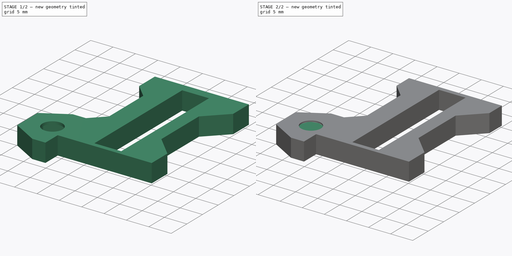
[diagram: build sequence overview — one tinted view per stage of 2, left to right]
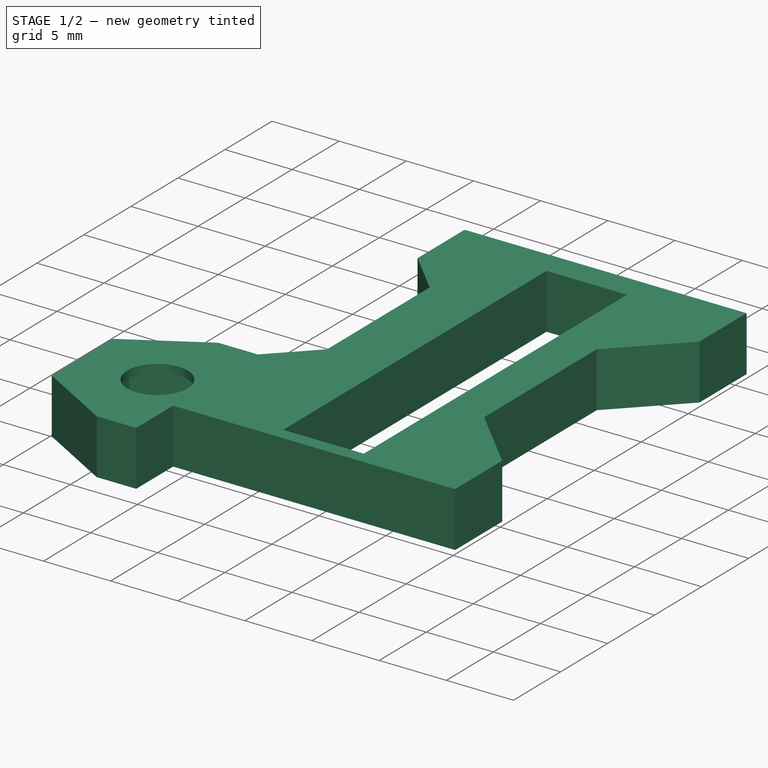
[diagram: stage 1 of 2 — iso view after this stage's code; geometry added in this stage tinted green]
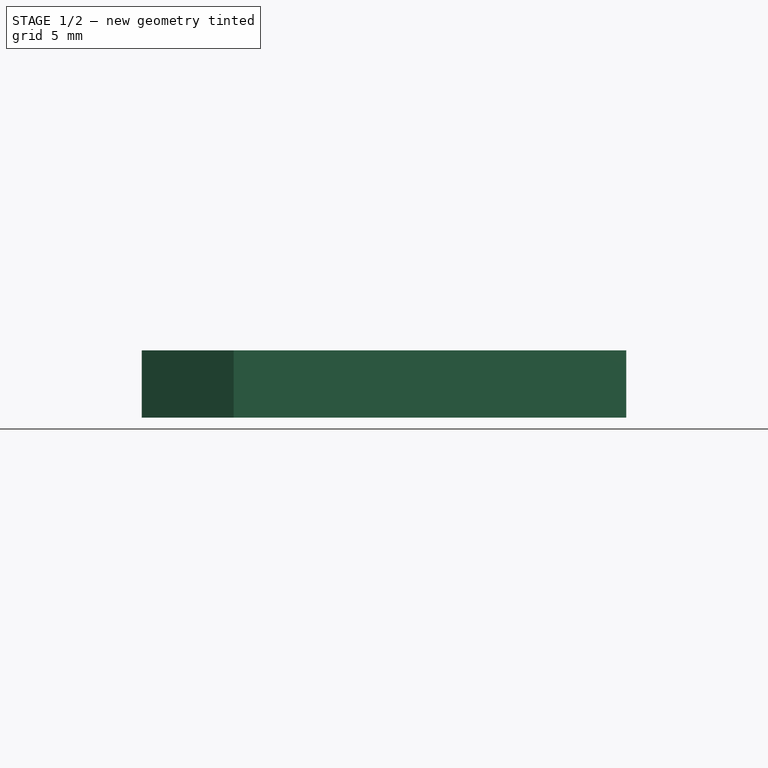
[diagram: stage 1 of 2 — front view after this stage's code; geometry added in this stage tinted green]
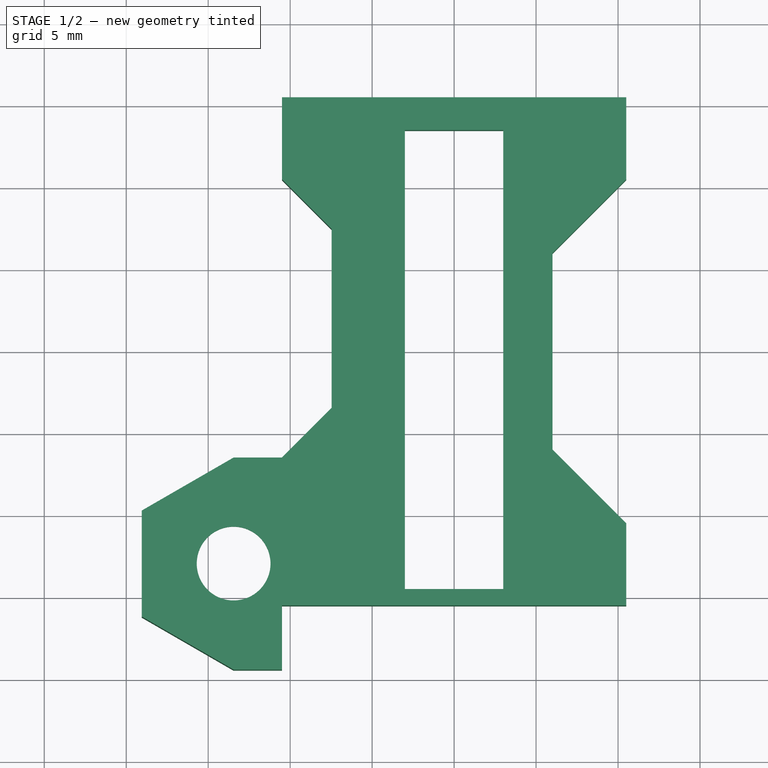
[diagram: stage 1 of 2 — top view after this stage's code; geometry added in this stage tinted green]
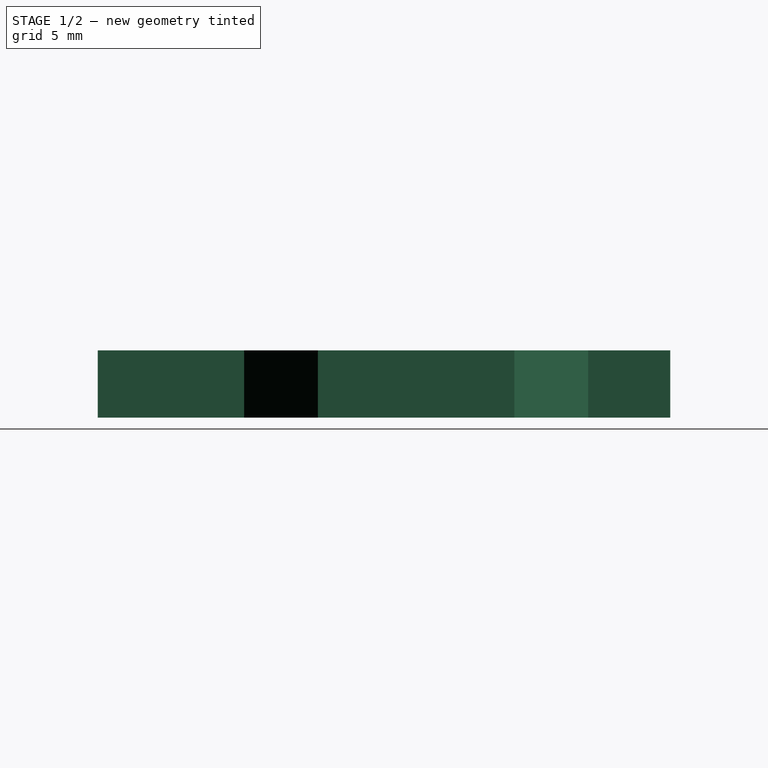
[diagram: stage 1 of 2 — right view after this stage's code; geometry added in this stage tinted green]
FCSTD DOCUMENT  (FreeCAD 0.15R4671 (Git))
Label: Halter Gleitlager Z - Zwischenstueck links
License: All rights reserved
LicenseURL: http://de.wikipedia.org/wiki/Alle_Rechte_vorbehalten
objects: Sketcher::SketchObject×4, PartDesign::Pad×2, PartDesign::Pocket×2
note: 12 computed .brp shape members not serialized (recipe doc carries the construction recipe); baked Part::Feature solids carry a one-line shape summary decoded from their .brp

FEATURE [Sketcher::SketchObject] Sketch
  sketch-geometry (39):
    g0: LineSegment StartX=-10.5 StartY=15.5 StartZ=0 EndX=10.5 EndY=15.5 EndZ=0
    g1: LineSegment [constr] StartX=10.5 StartY=15.5 StartZ=0 EndX=10.5 EndY=-15.5 EndZ=0
    g2: LineSegment [constr] StartX=10.5 StartY=-15.5 StartZ=0 EndX=-10.5 EndY=-15.5 EndZ=0
    g3: LineSegment StartX=10.5 StartY=15.5 StartZ=0 EndX=10.5 EndY=10.491 EndZ=0
    g4: LineSegment StartX=10.5 StartY=10.491 StartZ=0 EndX=6 EndY=5.991 EndZ=0
    g5: LineSegment StartX=6 StartY=5.991 StartZ=0 EndX=6 EndY=-5.991 EndZ=0
    g6: LineSegment StartX=6 StartY=-5.991 StartZ=0 EndX=10.5 EndY=-10.491 EndZ=0
    g7: LineSegment StartX=10.5 StartY=-10.491 StartZ=0 EndX=10.5 EndY=-15.5 EndZ=0
    g8: LineSegment StartX=-10.5 StartY=15.5 StartZ=0 EndX=-10.5 EndY=10.491 EndZ=0
    g9: LineSegment [constr] StartX=-10.5 StartY=10.491 StartZ=0 EndX=-6 EndY=5.991 EndZ=0
    g10: LineSegment [constr] StartX=-6 StartY=-5.991 StartZ=0 EndX=-10.509 EndY=-10.5 EndZ=0
    g11: LineSegment [constr] StartX=-13.45 StartY=-17.0203 StartZ=0 EndX=-9.925 EndY=-14.9852 EndZ=0
    g12: LineSegment [constr] StartX=-9.925 StartY=-14.9852 StartZ=0 EndX=-9.925 EndY=-10.9148 EndZ=0
    g13: LineSegment [constr] StartX=-9.925 StartY=-10.9148 StartZ=0 EndX=-13.45 EndY=-8.87968 EndZ=0
    g14: LineSegment [constr] StartX=-13.45 StartY=-8.87968 StartZ=0 EndX=-16.975 EndY=-10.9148 EndZ=0
    g15: LineSegment [constr] StartX=-16.975 StartY=-10.9148 StartZ=0 EndX=-16.975 EndY=-14.9852 EndZ=0
    g16: LineSegment [constr] StartX=-16.975 StartY=-14.9852 StartZ=0 EndX=-13.45 EndY=-17.0203 EndZ=0
    g17: Circle [constr] CenterX=-13.45 CenterY=-12.95 CenterZ=0 NormalX=0 NormalY=0 NormalZ=1 Radius=4.07032
    g18: LineSegment StartX=-7.47211 StartY=-3.44358 StartZ=0 EndX=-10.5082 EndY=-6.47968 EndZ=0
    g19: LineSegment StartX=-10.5082 StartY=-6.47968 StartZ=0 EndX=-13.45 EndY=-6.47968 EndZ=0
    g20: LineSegment StartX=-13.45 StartY=-6.47968 StartZ=0 EndX=-19.0535 EndY=-9.71484 EndZ=0
    g21: LineSegment StartX=-19.0535 StartY=-9.71484 StartZ=0 EndX=-19.0535 EndY=-16.1852 EndZ=0
    g22: LineSegment StartX=-19.0535 StartY=-16.1852 StartZ=0 EndX=-13.45 EndY=-19.4203 EndZ=0
    g23: LineSegment [constr] StartX=-13.45 StartY=-19.4203 StartZ=0 EndX=-10.5 EndY=-17.7171 EndZ=0
    g24: LineSegment StartX=-10.5 StartY=-15.5 StartZ=0 EndX=10.5 EndY=-15.5 EndZ=0
    g25: LineSegment [constr] StartX=-19.0535 StartY=-9.71484 StartZ=0 EndX=-16.975 EndY=-10.9148 EndZ=0
    g26: LineSegment [constr] StartX=-19.0535 StartY=-16.1852 StartZ=0 EndX=-16.975 EndY=-14.9852 EndZ=0
    g27: LineSegment [constr] StartX=-13.45 StartY=-17.0203 StartZ=0 EndX=-13.45 EndY=-19.4203 EndZ=0
    g28: LineSegment StartX=-7.47211 StartY=-3.44358 StartZ=0 EndX=-7.47211 EndY=7.46311 EndZ=0
    g29: LineSegment [constr] StartX=-13.45 StartY=-8.87968 StartZ=0 EndX=-13.45 EndY=-6.47968 EndZ=0
    g30: LineSegment StartX=-10.5 StartY=10.491 StartZ=0 EndX=-7.47211 EndY=7.46311 EndZ=0
    g31: LineSegment StartX=-10.5 StartY=-15.5 StartZ=0 EndX=-10.5 EndY=-17.7171 EndZ=0
    g32: Circle CenterX=-13.45 CenterY=-12.95 CenterZ=0 NormalX=0 NormalY=0 NormalZ=1 Radius=2.25
    g33: LineSegment StartX=-13.45 StartY=-19.4203 StartZ=0 EndX=-10.5 EndY=-19.4203 EndZ=0
    g34: LineSegment StartX=-10.5 StartY=-19.4203 StartZ=0 EndX=-10.5 EndY=-17.7171 EndZ=0
    g35: LineSegment StartX=-3 StartY=13.5 StartZ=0 EndX=3 EndY=13.5 EndZ=0
    g36: LineSegment StartX=3 StartY=13.5 StartZ=0 EndX=3 EndY=-14.5 EndZ=0
    g37: LineSegment StartX=3 StartY=-14.5 StartZ=0 EndX=-3 EndY=-14.5 EndZ=0
    g38: LineSegment StartX=-3 StartY=-14.5 StartZ=0 EndX=-3 EndY=13.5 EndZ=0
  constraints (102):
    c: Coincident(g0,g1)
    c: Coincident(g1,g2)
    c: Horizontal(g0)
    c: Horizontal(g2)
    c: Vertical(g1)
    c: DistanceY(g1) = -31
    c: Symmetric(g0,g1,g-1)
    c: Symmetric(g0,g0,g-2)
    c: DistanceX(g0) = 21
    c: Coincident(g0,g3)
    c: Vertical(g3)
    c: Coincident(g3,g4)
    c: Coincident(g4,g5)
    c: Vertical(g5)
    c: Coincident(g5,g6)
    c: Coincident(g6,g7)
    c: Coincident(g7,g1)
    c: Vertical(g7)
    c: Coincident(g0,g8)
    c: Vertical(g8)
    c: Coincident(g8,g9)
    c: Parallel(g6,g9)
    c: Parallel(g10,g4)
    c: Symmetric(g9,g10,g-1)
    c: Symmetric(g4,g5,g-1)
    c: Symmetric(g9,g4,g-2)
    c: DistanceX(g9,g4) = 12
    c: DistanceY(g10,g2) = -5
    c: Coincident(g11,g12)
    c: Coincident(g12,g13)
    c: Coincident(g13,g14)
    c: Coincident(g14,g15)
    c: Coincident(g15,g16)
    c: Coincident(g16,g11)
    c: Equal(g11, g12-g16) x5
    c: PointOnObject(g11,g17)
    c: PointOnObject(g12,g17)
    c: PointOnObject(g13,g17)
    c: PointOnObject(g14,g17)
    c: PointOnObject(g15,g17)
    c: PointOnObject(g16,g17)
    c: Vertical(g15)
    c: Distance(g11,g15) = 7.05
    c: DistanceX(g2,g17) = -2.95
    c: DistanceY(g17,g2) = -2.55
    c: Coincident(g18,g19)
    c: Horizontal(g19)
    c: Coincident(g19,g20)
    c: Coincident(g20,g21)
    c: Vertical(g21)
    c: Coincident(g21,g22)
    c: Coincident(g22,g23)
    c: Horizontal(g24)
    c: Coincident(g24,g1)
    c: Parallel(g23,g11)
    c: Parallel(g16,g22)
    c: Parallel(g14,g20)
    c: Parallel(g18,g10)
    c: Coincident(g25,g20)
    c: Coincident(g25,g14)
    c: Perpendicular(g17,g25)
    c: Distance(g25) = 2.4
    c: Coincident(g26,g21)
    c: Coincident(g26,g15)
    c: Perpendicular(g17,g26)
    c: Equal(g26,g25)
    c: Coincident(g27,g11)
    c: Coincident(g27,g22)
    c: Vertical(g27)
    c: Coincident(g28,g18)
    c: PointOnObject(g28,g9)
    c: Vertical(g28)
    c: Angle(g5,g4) = 2.35619
    c: Angle(g6,g5) = 2.35619
    c: Coincident(g29,g13)
    c: Coincident(g29,g19)
    c: Vertical(g29)
    c: Equal(g29,g27)
    c: Coincident(g30,g8)
    c: Coincident(g28,g30)
    c: Coincident(g31,g2)
    c: Coincident(g31,g23)
    c: Vertical(g31)
    c: Coincident(g32,g17)
    c: Radius(g32) = 2.25
    c: Coincident(g22,g33)
    c: Horizontal(g33)
    c: Coincident(g33,g34)
    c: Coincident(g34,g23)
    c: Vertical(g34)
    c: Coincident(g35,g36)
    c: Coincident(g36,g37)
    c: Coincident(g37,g38)
    c: Coincident(g38,g35)
    c: Horizontal(g35)
    c: Horizontal(g37)
    c: Vertical(g36)
    c: Vertical(g38)
    c: Symmetric(g37,g36,g-2)
    c: DistanceX(g5,g36) = -3
    c: DistanceY(g1,g36) = 1
    c: DistanceY(g0,g35) = -2
FEATURE [PartDesign::Pad] Pad
  Length = 4.1
  Length2 = 100
  Sketch = -> Sketch
  Type = 0
FEATURE [Sketcher::SketchObject] Sketch001
  ExternalGeometry = -> [Pad]
  Placement = pos=(0,0,0) rot=(1,0,0;3.14159rad)
  Support = -> Pad [Face24]
  sketch-geometry (7):
    g0: LineSegment StartX=-13.45 StartY=8.87968 StartZ=0 EndX=-9.925 EndY=10.9148 EndZ=0
    g1: LineSegment StartX=-9.925 StartY=10.9148 StartZ=0 EndX=-9.925 EndY=14.9852 EndZ=0
    g2: LineSegment StartX=-9.925 StartY=14.9852 StartZ=0 EndX=-13.45 EndY=17.0203 EndZ=0
    g3: LineSegment StartX=-13.45 StartY=17.0203 StartZ=0 EndX=-16.975 EndY=14.9852 EndZ=0
    g4: LineSegment StartX=-16.975 StartY=14.9852 StartZ=0 EndX=-16.975 EndY=10.9148 EndZ=0
    g5: LineSegment StartX=-16.975 StartY=10.9148 StartZ=0 EndX=-13.45 EndY=8.87968 EndZ=0
    g6: Circle [constr] CenterX=-13.45 CenterY=12.95 CenterZ=0 NormalX=0 NormalY=0 NormalZ=1 Radius=4.07032
  constraints (16):
    c: Coincident(g0,g1)
    c: Coincident(g1,g2)
    c: Coincident(g2,g3)
    c: Coincident(g3,g4)
    c: Coincident(g4,g5)
    c: Coincident(g5,g0)
    c: Equal(g0, g1-g5) x5
    c: PointOnObject(g0,g6)
    c: PointOnObject(g1,g6)
    c: PointOnObject(g2,g6)
    c: PointOnObject(g3,g6)
    c: PointOnObject(g4,g6)
    c: PointOnObject(g5,g6)
    c: Vertical(g4)
    c: Coincident(g6,g-3)
    c: Distance(g4,g0) = 7.05
FEATURE [PartDesign::Pocket] Pocket
  Length = 3.5
  Sketch = -> Sketch001
  Type = 0
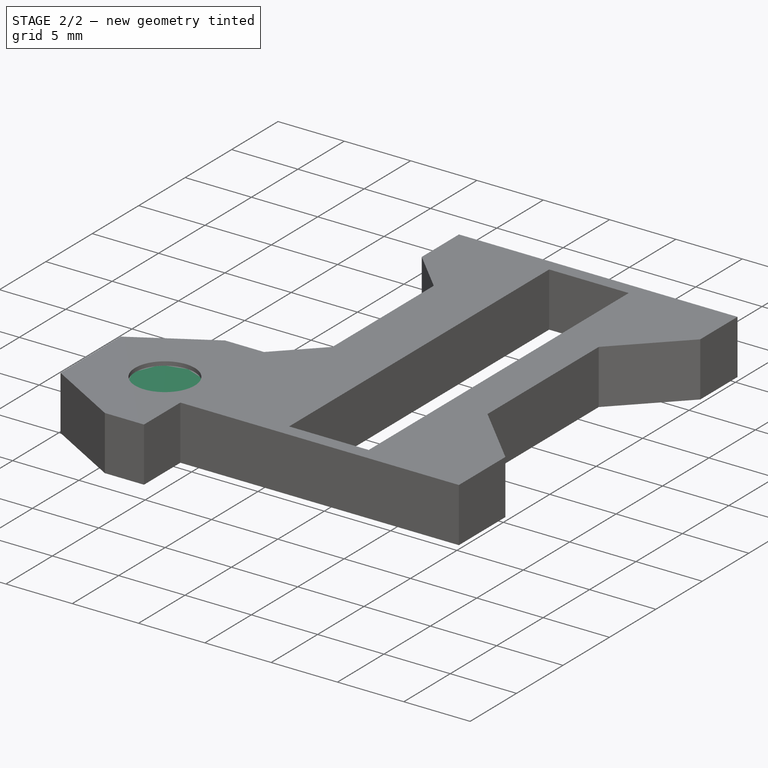
[diagram: stage 2 of 2 — iso view after this stage's code; geometry added in this stage tinted green]
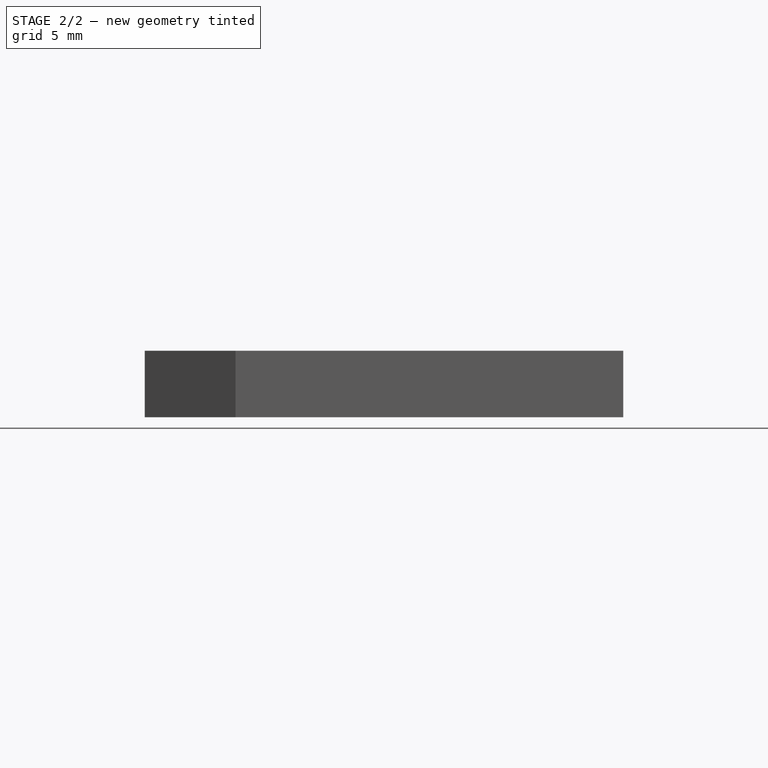
[diagram: stage 2 of 2 — front view after this stage's code; geometry added in this stage tinted green]
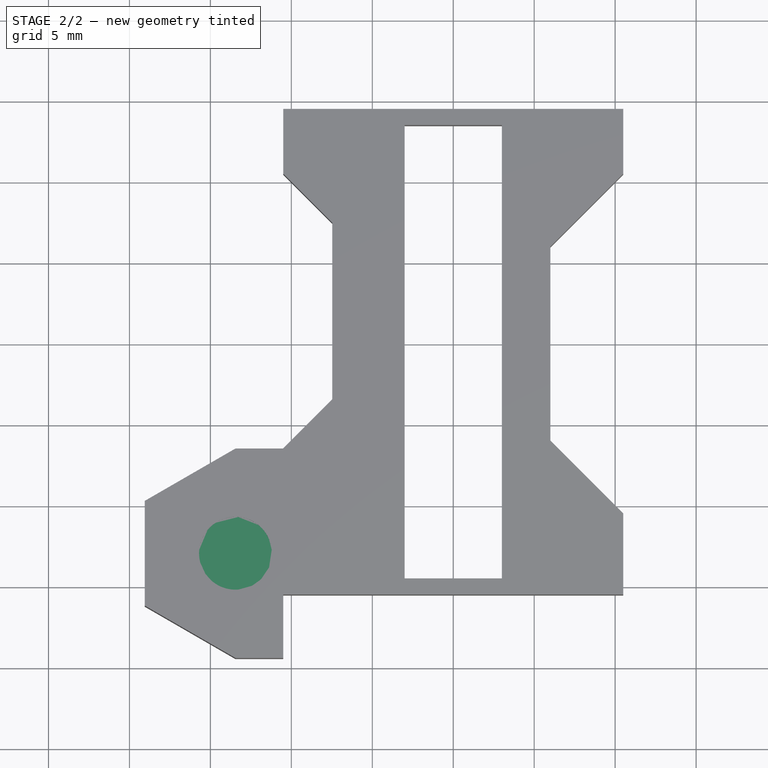
[diagram: stage 2 of 2 — top view after this stage's code; geometry added in this stage tinted green]
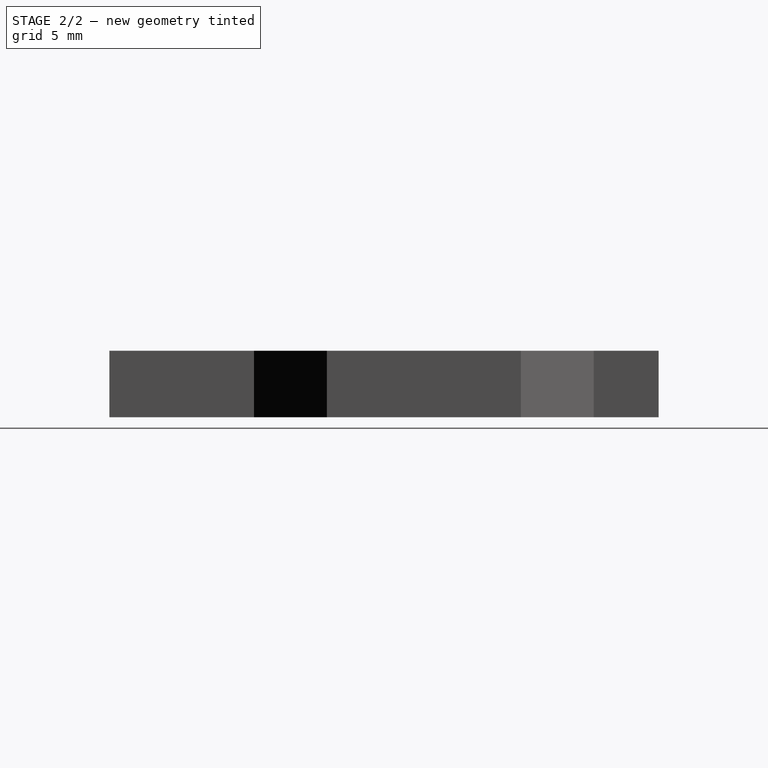
[diagram: stage 2 of 2 — right view after this stage's code; geometry added in this stage tinted green]
FEATURE [Sketcher::SketchObject] Sketch003
  ExternalGeometry = -> [Pocket]
  Placement = pos=(0,15.5,0) rot=(0,0.707107,0.707107;3.14159rad)
  Support = -> Pocket [Face9]
  sketch-geometry (4):
    g0: LineSegment StartX=-10.5 StartY=0 StartZ=0 EndX=10.5 EndY=0 EndZ=0
    g1: LineSegment StartX=10.5 StartY=0 StartZ=0 EndX=10.5 EndY=4.1 EndZ=0
    g2: LineSegment StartX=10.5 StartY=4.1 StartZ=0 EndX=-10.5 EndY=4.1 EndZ=0
    g3: LineSegment StartX=-10.5 StartY=4.1 StartZ=0 EndX=-10.5 EndY=0 EndZ=0
  constraints (10):
    c: Coincident(g0,g1)
    c: Coincident(g1,g2)
    c: Coincident(g2,g3)
    c: Coincident(g3,g0)
    c: Horizontal(g0)
    c: Horizontal(g2)
    c: Vertical(g1)
    c: Vertical(g3)
    c: Coincident(g0,g-4)
    c: Coincident(g1,g-3)
FEATURE [PartDesign::Pocket] Pocket001
  Length = 1
  Sketch = -> Sketch003
  Type = 0
FEATURE [Sketcher::SketchObject] Sketch002
  ExternalGeometry = -> [Pocket]
  Placement = pos=(0,0,3.5) rot=(1,0,0;3.14159rad)
  Support = -> Pocket001 [Face32]
  sketch-geometry (1):
    g0: Circle CenterX=-13.45 CenterY=12.95 CenterZ=0 NormalX=0 NormalY=0 NormalZ=1 Radius=2.25
  constraints (2):
    c: Equal(g-3,g0)
    c: Coincident(g0,g-3)
FEATURE [PartDesign::Pad] Pad001  label="Druckbar"
  Length = 0.3
  Length2 = 100
  Reversed = true
  Sketch = -> Sketch002
  Type = 0
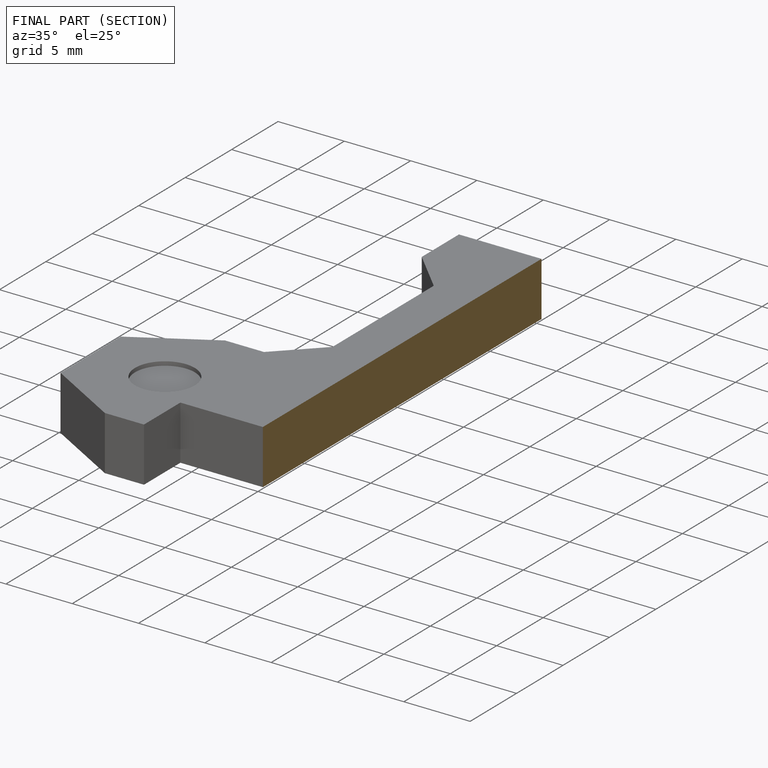
[diagram: finished part — half-section view (interior)]
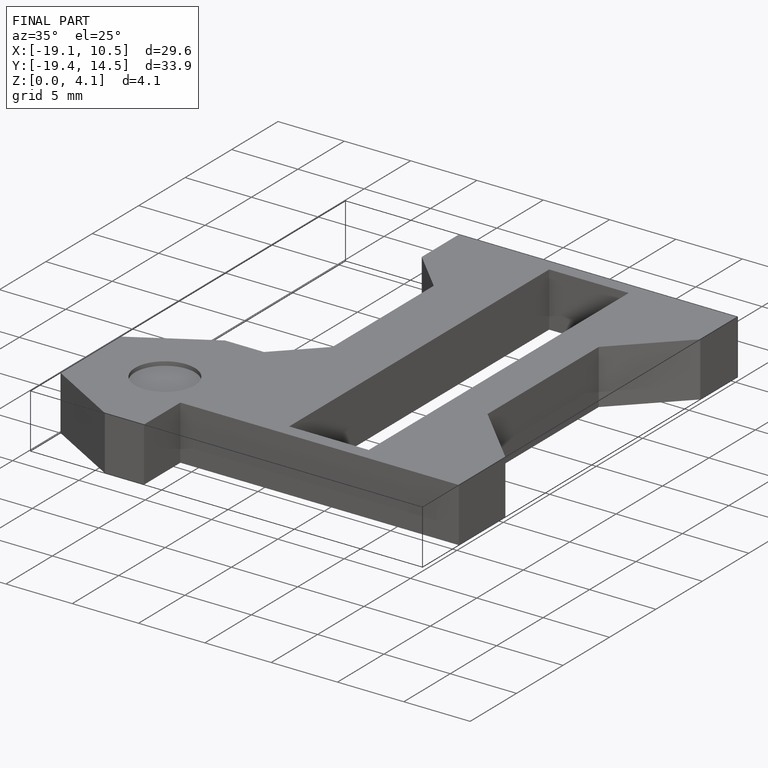
[diagram: finished part — iso view with bounding-box wireframe]
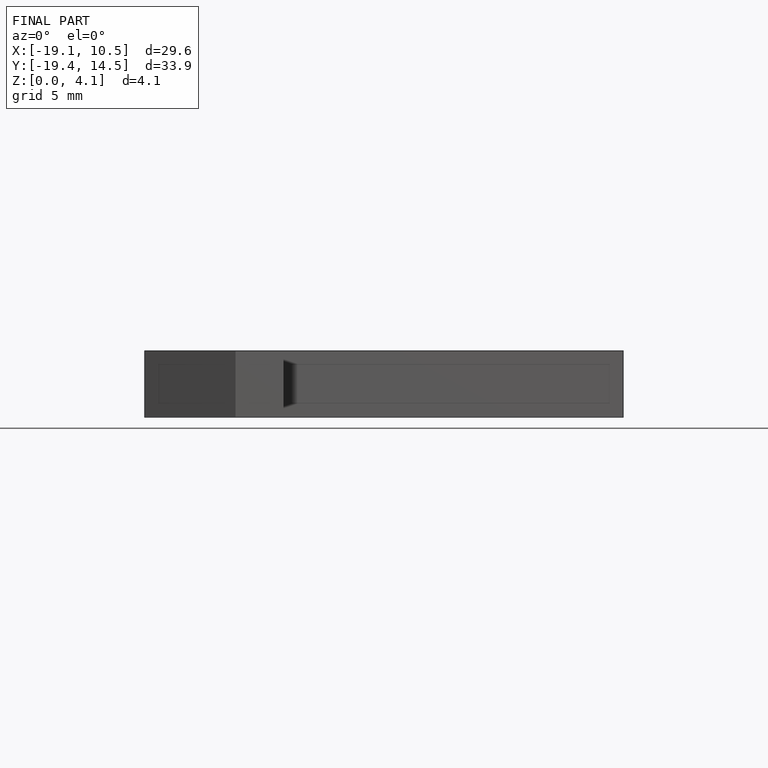
[diagram: finished part — front view with bounding-box wireframe]
